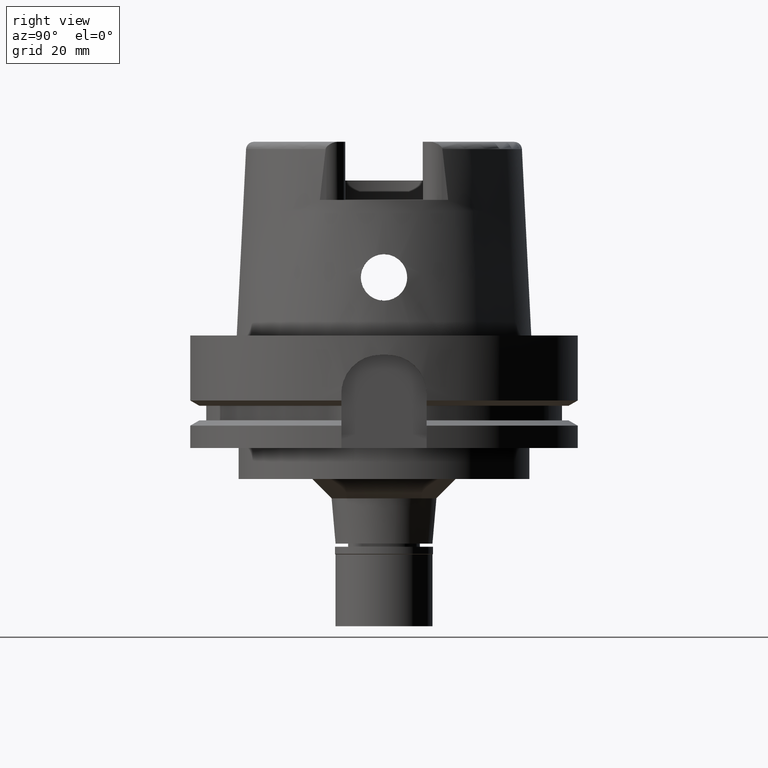
[diagram: clean part render]
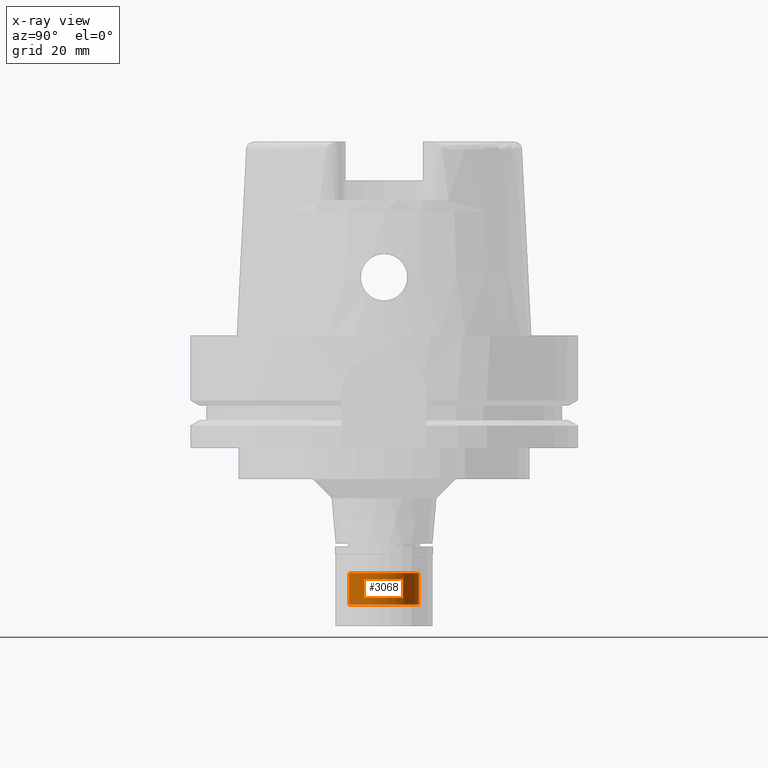
[diagram: x-ray — body ghosted, one internal face saturated and labeled with its STEP entity id]
A machine part, right view, then the same camera in x-ray: the body is ghosted and one INTERNAL B-rep face — a face not visible from any outside direction — is saturated and labeled: STEP entity #3068.
In plain terms, the highlighted cylindrical surface (edge-blend (fillet) strip) has radius 9 mm, axis along (0, 0, -1).
Its self-contained STEP definition (entity closure, byte-faithful):
#66 = DIRECTION ( 'NONE',  ( 0.0000000000000000000, 1.000000000000000000, 0.0000000000000000000 ) ) ;
#135 = DIRECTION ( 'NONE',  ( 0.0000000000000000000, -1.000000000000000000, 0.0000000000000000000 ) ) ;
#158 = CARTESIAN_POINT ( 'NONE',  ( 0.0000000000000000000, 0.0000000000000000000, -6.799999999999999822 ) ) ;
#873 = DIRECTION ( 'NONE',  ( 0.0000000000000000000, 0.0000000000000000000, -1.000000000000000000 ) ) ;
#934 = CARTESIAN_POINT ( 'NONE',  ( 0.0000000000000000000, 0.0000000000000000000, 0.0000000000000000000 ) ) ;
#1094 = VERTEX_POINT ( 'NONE', #2652 ) ;
#1295 = FACE_OUTER_BOUND ( 'NONE', #1907, .T. ) ;
#1400 = CIRCLE ( 'NONE', #5530, 9.000000000000000000 ) ;
#1424 = CARTESIAN_POINT ( 'NONE',  ( 0.0000000000000000000, 9.000000000000000000, -15.00000000000000000 ) ) ;
#1593 = EDGE_CURVE ( 'NONE', #4908, #2925, #4903, .T. ) ;
#1602 = ORIENTED_EDGE ( 'NONE', *, *, #1593, .T. ) ;
#1624 = EDGE_CURVE ( 'NONE', #2925, #1094, #3533, .T. ) ;
#1790 = CYLINDRICAL_SURFACE ( 'NONE', #4568, 9.000000000000000000 ) ;
#1866 = DIRECTION ( 'NONE',  ( 0.0000000000000000000, 0.0000000000000000000, 1.000000000000000000 ) ) ;
#1907 = EDGE_LOOP ( 'NONE', ( #1602, #4954, #5070, #4923 ) ) ;
#2079 = CARTESIAN_POINT ( 'NONE',  ( 0.0000000000000000000, -9.000000000000000000, -15.00000000000000000 ) ) ;
#2264 = CARTESIAN_POINT ( 'NONE',  ( 0.0000000000000000000, 0.0000000000000000000, -15.00000000000000000 ) ) ;
#2410 = VERTEX_POINT ( 'NONE', #5384 ) ;
#2470 = AXIS2_PLACEMENT_3D ( 'NONE', #2264, #4041, #66 ) ;
#2652 = CARTESIAN_POINT ( 'NONE',  ( 0.0000000000000000000, -9.000000000000000000, -6.799999999999999822 ) ) ;
#2687 = DIRECTION ( 'NONE',  ( 0.0000000000000000000, 0.0000000000000000000, 1.000000000000000000 ) ) ;
#2925 = VERTEX_POINT ( 'NONE', #2079 ) ;
#3068 = ADVANCED_FACE ( 'NONE', ( #1295 ), #1790, .F. ) ;
#3192 = VECTOR ( 'NONE', #3550, 1000.000000000000000 ) ;
#3533 = LINE ( 'NONE', #4876, #4358 ) ;
#3550 = DIRECTION ( 'NONE',  ( 0.0000000000000000000, 0.0000000000000000000, 1.000000000000000000 ) ) ;
#4041 = DIRECTION ( 'NONE',  ( 0.0000000000000000000, 0.0000000000000000000, -1.000000000000000000 ) ) ;
#4046 = EDGE_CURVE ( 'NONE', #4908, #2410, #4831, .T. ) ;
#4358 = VECTOR ( 'NONE', #1866, 1000.000000000000000 ) ;
#4425 = DIRECTION ( 'NONE',  ( 0.0000000000000000000, -1.000000000000000000, 0.0000000000000000000 ) ) ;
#4503 = EDGE_CURVE ( 'NONE', #1094, #2410, #1400, .T. ) ;
#4568 = AXIS2_PLACEMENT_3D ( 'NONE', #934, #873, #4425 ) ;
#4729 = CARTESIAN_POINT ( 'NONE',  ( 0.0000000000000000000, 9.000000000000000000, -15.00000000000000000 ) ) ;
#4831 = LINE ( 'NONE', #1424, #3192 ) ;
#4876 = CARTESIAN_POINT ( 'NONE',  ( 0.0000000000000000000, -9.000000000000000000, -15.00000000000000000 ) ) ;
#4903 = CIRCLE ( 'NONE', #2470, 9.000000000000000000 ) ;
#4908 = VERTEX_POINT ( 'NONE', #4729 ) ;
#4923 = ORIENTED_EDGE ( 'NONE', *, *, #4046, .F. ) ;
#4954 = ORIENTED_EDGE ( 'NONE', *, *, #1624, .T. ) ;
#5070 = ORIENTED_EDGE ( 'NONE', *, *, #4503, .T. ) ;
#5384 = CARTESIAN_POINT ( 'NONE',  ( 0.0000000000000000000, 9.000000000000000000, -6.799999999999999822 ) ) ;
#5530 = AXIS2_PLACEMENT_3D ( 'NONE', #158, #2687, #135 ) ;